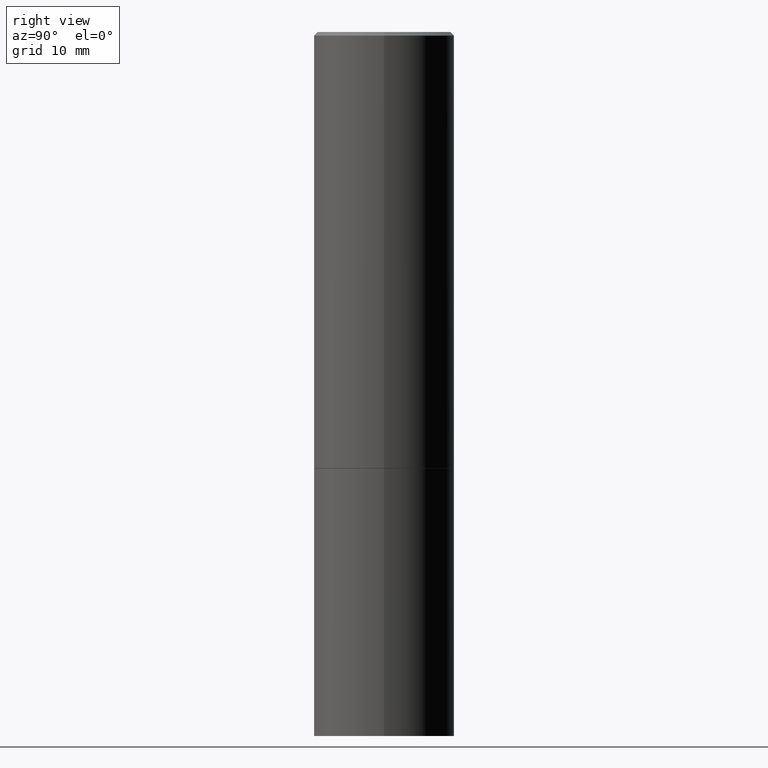
[diagram: clean part render]
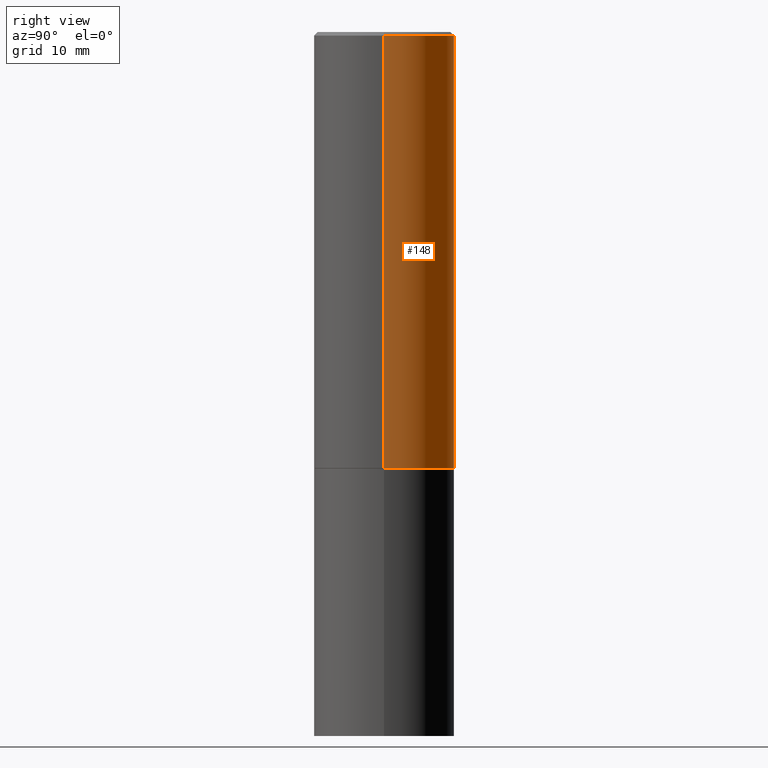
[diagram: same view with one face highlighted and labeled with its STEP entity id]
A machine part, right view. The second image highlights one B-rep face of the part: STEP entity #148.
In plain terms, the highlighted cylindrical surface (partial cylindrical patch) has radius 10 mm, axis along (-0, 0, 1).
Its self-contained STEP definition (entity closure, byte-faithful):
#1 = EDGE_CURVE ( 'NONE', #264, #202, #20, .T. ) ;
#8 = DIRECTION ( 'NONE',  ( -2.445468806185136597E-29, 3.491481338843145583E-15, 1.000000000000000000 ) ) ;
#15 = FACE_OUTER_BOUND ( 'NONE', #304, .T. ) ;
#16 = VERTEX_POINT ( 'NONE', #329 ) ;
#20 = LINE ( 'NONE', #197, #280 ) ;
#33 = CIRCLE ( 'NONE', #278, 0.3937000000000000499 ) ;
#34 = CYLINDRICAL_SURFACE ( 'NONE', #314, 0.3936999999999998834 ) ;
#36 = ORIENTED_EDGE ( 'NONE', *, *, #87, .F. ) ;
#53 = CARTESIAN_POINT ( 'NONE',  ( 0.3936999999999997724, -2.770807688499513762E-15, -0.02000000000000009062 ) ) ;
#56 = AXIS2_PLACEMENT_3D ( 'NONE', #107, #271, #228 ) ;
#72 = ORIENTED_EDGE ( 'NONE', *, *, #1, .T. ) ;
#87 = EDGE_CURVE ( 'NONE', #100, #202, #191, .T. ) ;
#100 = VERTEX_POINT ( 'NONE', #53 ) ;
#107 = CARTESIAN_POINT ( 'NONE',  ( 4.890937612370295054E-31, -6.982962677686322424E-17, -0.02000000000000009062 ) ) ;
#114 = ORIENTED_EDGE ( 'NONE', *, *, #292, .F. ) ;
#123 = DIRECTION ( 'NONE',  ( 1.000000000000000000, -6.982962677686265133E-15, 0.000000000000000000 ) ) ;
#148 = ADVANCED_FACE ( 'NONE', ( #15 ), #34, .T. ) ;
#149 = CARTESIAN_POINT ( 'NONE',  ( 0.000000000000000000, 0.000000000000000000, 0.000000000000000000 ) ) ;
#158 = ORIENTED_EDGE ( 'NONE', *, *, #239, .T. ) ;
#188 = DIRECTION ( 'NONE',  ( 1.000000000000000000, -6.982962677686266711E-15, 4.876176775795935793E-29 ) ) ;
#191 = CIRCLE ( 'NONE', #56, 0.3936999999999997724 ) ;
#196 = DIRECTION ( 'NONE',  ( -2.445468806185136877E-29, 3.491481338843145188E-15, 1.000000000000000000 ) ) ;
#197 = CARTESIAN_POINT ( 'NONE',  ( -0.3936999999999998834, 2.797406750687513603E-15, -1.936584745033355895E-29 ) ) ;
#202 = VERTEX_POINT ( 'NONE', #283 ) ;
#228 = DIRECTION ( 'NONE',  ( 1.000000000000000000, -6.982962677686266711E-15, 0.000000000000000000 ) ) ;
#239 = EDGE_CURVE ( 'NONE', #16, #264, #33, .T. ) ;
#264 = VERTEX_POINT ( 'NONE', #324 ) ;
#271 = DIRECTION ( 'NONE',  ( -2.445468806185136597E-29, 3.491481338843145583E-15, 1.000000000000000000 ) ) ;
#278 = AXIS2_PLACEMENT_3D ( 'NONE', #317, #8, #123 ) ;
#280 = VECTOR ( 'NONE', #336, 39.37007874015748143 ) ;
#283 = CARTESIAN_POINT ( 'NONE',  ( -0.3936999999999997724, 2.679362779428217946E-15, -0.02000000000000009062 ) ) ;
#292 = EDGE_CURVE ( 'NONE', #16, #100, #359, .T. ) ;
#302 = CARTESIAN_POINT ( 'NONE',  ( 0.3936999999999998834, -2.749192406205082428E-15, 1.919750796630859331E-29 ) ) ;
#304 = EDGE_LOOP ( 'NONE', ( #158, #72, #36, #114 ) ) ;
#314 = AXIS2_PLACEMENT_3D ( 'NONE', #149, #315, #188 ) ;
#315 = DIRECTION ( 'NONE',  ( -2.445468806185136597E-29, 3.491481338843145583E-15, 1.000000000000000000 ) ) ;
#317 = CARTESIAN_POINT ( 'NONE',  ( 5.966699340211115678E-29, -8.518865318643391536E-15, -2.439900000000000180 ) ) ;
#324 = CARTESIAN_POINT ( 'NONE',  ( -0.3937000000000001054, -1.496940722022610659E-15, -2.439900000000000180 ) ) ;
#329 = CARTESIAN_POINT ( 'NONE',  ( 0.3937000000000000499, -1.126805772484847318E-14, -2.439900000000000180 ) ) ;
#336 = DIRECTION ( 'NONE',  ( -2.445468806185136877E-29, 3.491481338843145188E-15, 1.000000000000000000 ) ) ;
#357 = VECTOR ( 'NONE', #196, 39.37007874015748143 ) ;
#359 = LINE ( 'NONE', #302, #357 ) ;